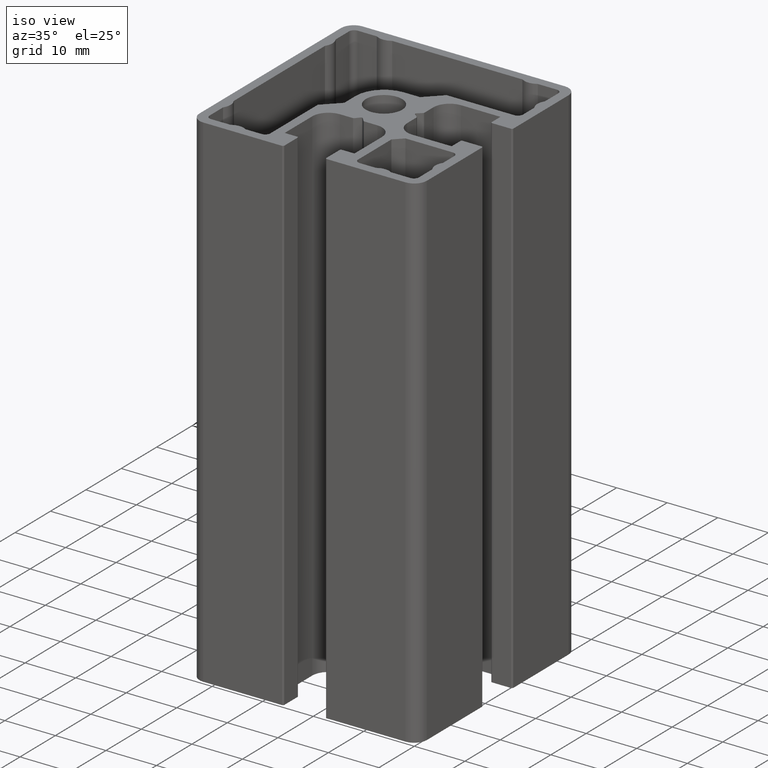
[diagram: clean part render]
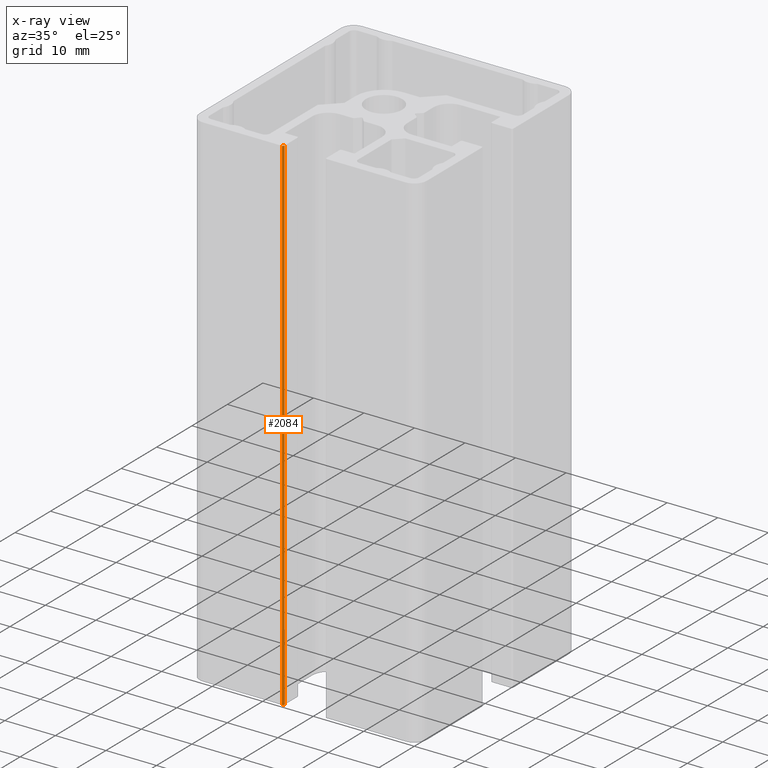
[diagram: x-ray — body ghosted, one internal face saturated and labeled with its STEP entity id]
A machine part, iso view, then the same camera in x-ray: the body is ghosted and one INTERNAL B-rep face — a face not visible from any outside direction — is saturated and labeled: STEP entity #2084.
In plain terms, the highlighted cylindrical surface (edge-blend (fillet) strip) has radius 0.3 mm, axis along (0, 0, 1).
Its self-contained STEP definition (entity closure, byte-faithful):
#98=CIRCLE('',#2270,0.2999999999994);
#99=CIRCLE('',#2271,0.2999999999994);
#172=CYLINDRICAL_SURFACE('',#2269,0.2999999999994);
#256=FACE_OUTER_BOUND('',#364,.T.);
#364=EDGE_LOOP('',(#1601,#1602,#1603,#1604));
#533=LINE('',#3392,#735);
#534=LINE('',#3395,#736);
#735=VECTOR('',#2758,100.);
#736=VECTOR('',#2761,100.);
#949=VERTEX_POINT('',#3388);
#950=VERTEX_POINT('',#3389);
#951=VERTEX_POINT('',#3391);
#952=VERTEX_POINT('',#3393);
#1223=EDGE_CURVE('',#949,#950,#98,.T.);
#1224=EDGE_CURVE('',#949,#951,#533,.T.);
#1225=EDGE_CURVE('',#952,#951,#99,.T.);
#1226=EDGE_CURVE('',#952,#950,#534,.T.);
#1601=ORIENTED_EDGE('',*,*,#1223,.F.);
#1602=ORIENTED_EDGE('',*,*,#1224,.T.);
#1603=ORIENTED_EDGE('',*,*,#1225,.F.);
#1604=ORIENTED_EDGE('',*,*,#1226,.T.);
#2084=ADVANCED_FACE('',(#256),#172,.T.);
#2269=AXIS2_PLACEMENT_3D('',#3387,#2754,#2755);
#2270=AXIS2_PLACEMENT_3D('',#3390,#2756,#2757);
#2271=AXIS2_PLACEMENT_3D('',#3394,#2759,#2760);
#2754=DIRECTION('center_axis',(0.,0.,1.));
#2755=DIRECTION('ref_axis',(-1.9891495857907E-12,1.,0.));
#2756=DIRECTION('center_axis',(0.,0.,1.));
#2757=DIRECTION('ref_axis',(-1.9891495857907E-12,1.,0.));
#2758=DIRECTION('',(0.,0.,-1.));
#2759=DIRECTION('center_axis',(0.,0.,-1.));
#2760=DIRECTION('ref_axis',(-1.9891495857907E-12,1.,0.));
#2761=DIRECTION('',(0.,0.,1.));
#3387=CARTESIAN_POINT('Origin',(-4.4500000000006,-22.2000000000012,0.));
#3388=CARTESIAN_POINT('',(-4.45000000000001,-22.5000000000006,100.));
#3389=CARTESIAN_POINT('',(-4.1500000000012,-22.2000000000006,100.));
#3390=CARTESIAN_POINT('Origin',(-4.4500000000006,-22.2000000000012,100.));
#3391=CARTESIAN_POINT('',(-4.45000000000001,-22.5000000000006,0.));
#3392=CARTESIAN_POINT('',(-4.4500000000006,-22.5,0.));
#3393=CARTESIAN_POINT('',(-4.1500000000012,-22.2000000000006,0.));
#3394=CARTESIAN_POINT('Origin',(-4.4500000000006,-22.2000000000012,0.));
#3395=CARTESIAN_POINT('',(-4.1500000000012,-22.2000000000006,0.));